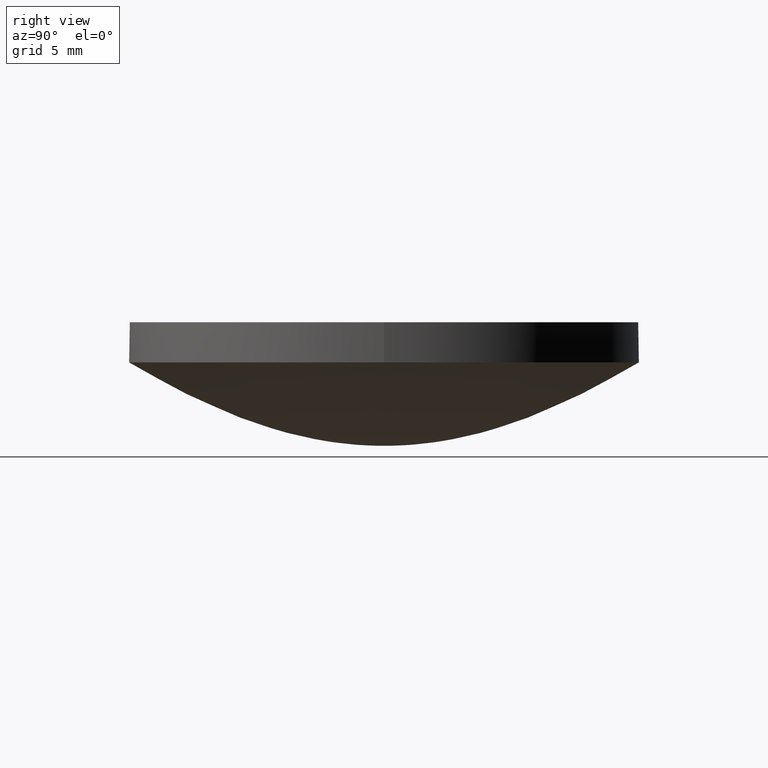
[diagram: clean part render]
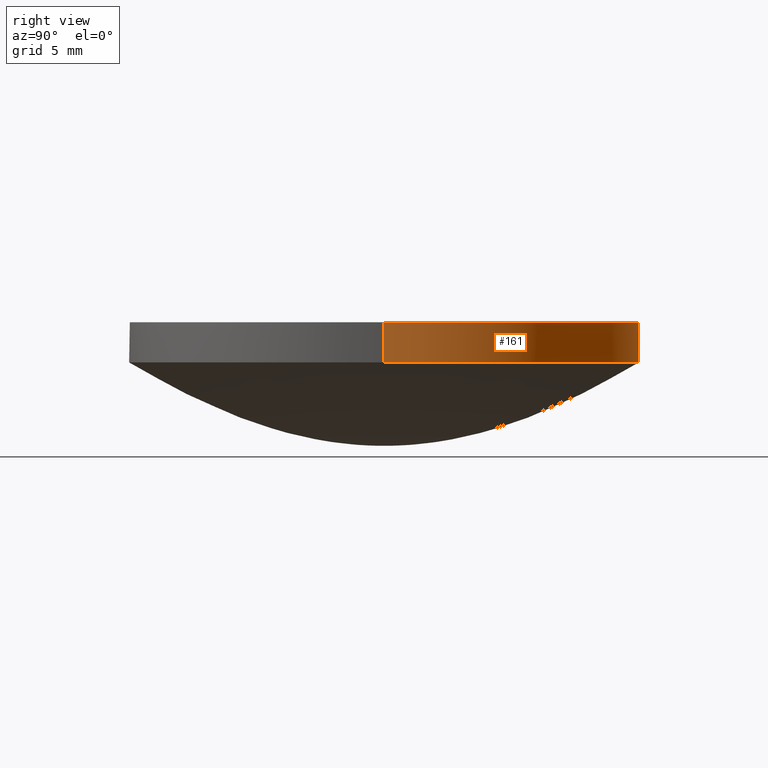
[diagram: same view with one face highlighted and labeled with its STEP entity id]
A machine part, right view. The second image highlights one B-rep face of the part: STEP entity #161.
In plain terms, the highlighted cylindrical surface (partial cylindrical patch) has radius 12.7 mm, axis along (0, 0, 1).
Its self-contained STEP definition (entity closure, byte-faithful):
#14 = LINE ( 'NONE', #56, #486 ) ;
#17 = AXIS2_PLACEMENT_3D ( 'NONE', #180, #139, #96 ) ;
#54 = CYLINDRICAL_SURFACE ( 'NONE', #186, 12.69999999999999929 ) ;
#56 = CARTESIAN_POINT ( 'NONE',  ( 12.70000000000000107, -8.881784197001250351E-16, 4.156662013466059236 ) ) ;
#59 = CARTESIAN_POINT ( 'NONE',  ( -3.851859888774471706E-31, 12.70000000000000284, 4.156662013466060124 ) ) ;
#70 = AXIS2_PLACEMENT_3D ( 'NONE', #498, #122, #215 ) ;
#83 = AXIS2_PLACEMENT_3D ( 'NONE', #515, #133, #409 ) ;
#85 = FACE_OUTER_BOUND ( 'NONE', #232, .T. ) ;
#93 = EDGE_CURVE ( 'NONE', #407, #189, #387, .T. ) ;
#96 = DIRECTION ( 'NONE',  ( 1.000000000000000000, 0.000000000000000000, -6.829619984160658046E-17 ) ) ;
#122 = DIRECTION ( 'NONE',  ( -0.000000000000000000, -0.000000000000000000, -1.000000000000000000 ) ) ;
#128 = EDGE_CURVE ( 'NONE', #495, #313, #511, .T. ) ;
#133 = DIRECTION ( 'NONE',  ( -0.000000000000000000, -0.000000000000000000, -1.000000000000000000 ) ) ;
#134 = CARTESIAN_POINT ( 'NONE',  ( 12.70000000000000107, -8.881784197001250351E-16, 6.159999999999998366 ) ) ;
#139 = DIRECTION ( 'NONE',  ( -6.993530863780509846E-17, -4.890947394265059749E-33, -1.000000000000000000 ) ) ;
#161 = ADVANCED_FACE ( 'NONE', ( #85 ), #54, .T. ) ;
#180 = CARTESIAN_POINT ( 'NONE',  ( 1.028282480094215200E-15, -8.881784197001250351E-16, 6.159999999999999254 ) ) ;
#186 = AXIS2_PLACEMENT_3D ( 'NONE', #219, #298, #204 ) ;
#189 = VERTEX_POINT ( 'NONE', #544 ) ;
#204 = DIRECTION ( 'NONE',  ( 1.000000000000000000, 0.000000000000000000, -6.829619984160658046E-17 ) ) ;
#215 = DIRECTION ( 'NONE',  ( -1.000000000000000000, 0.000000000000000000, 0.000000000000000000 ) ) ;
#217 = CIRCLE ( 'NONE', #83, 12.70000000000000284 ) ;
#219 = CARTESIAN_POINT ( 'NONE',  ( 8.881784197001250351E-16, -8.881784197001250351E-16, 4.156662013466060124 ) ) ;
#232 = EDGE_LOOP ( 'NONE', ( #326, #380, #241, #456, #534 ) ) ;
#241 = ORIENTED_EDGE ( 'NONE', *, *, #443, .T. ) ;
#256 = EDGE_CURVE ( 'NONE', #189, #452, #14, .T. ) ;
#266 = CARTESIAN_POINT ( 'NONE',  ( -12.69999999999999751, 6.671230152170134961E-16, 6.160000000000000142 ) ) ;
#290 = DIRECTION ( 'NONE',  ( 6.993530863780509846E-17, 4.890947394265059749E-33, 1.000000000000000000 ) ) ;
#293 = CARTESIAN_POINT ( 'NONE',  ( -12.69999999999999751, 6.671230152170134961E-16, 4.156662013466061012 ) ) ;
#298 = DIRECTION ( 'NONE',  ( 6.993530863780509846E-17, 4.890947394265059749E-33, 1.000000000000000000 ) ) ;
#313 = VERTEX_POINT ( 'NONE', #266 ) ;
#326 = ORIENTED_EDGE ( 'NONE', *, *, #391, .F. ) ;
#342 = DIRECTION ( 'NONE',  ( 6.993530863780509846E-17, 4.890947394265059749E-33, 1.000000000000000000 ) ) ;
#351 = VECTOR ( 'NONE', #290, 1000.000000000000000 ) ;
#380 = ORIENTED_EDGE ( 'NONE', *, *, #128, .T. ) ;
#387 = CIRCLE ( 'NONE', #70, 12.70000000000000284 ) ;
#391 = EDGE_CURVE ( 'NONE', #495, #407, #217, .T. ) ;
#407 = VERTEX_POINT ( 'NONE', #59 ) ;
#409 = DIRECTION ( 'NONE',  ( -1.000000000000000000, 0.000000000000000000, 0.000000000000000000 ) ) ;
#443 = EDGE_CURVE ( 'NONE', #313, #452, #532, .T. ) ;
#452 = VERTEX_POINT ( 'NONE', #134 ) ;
#456 = ORIENTED_EDGE ( 'NONE', *, *, #256, .F. ) ;
#486 = VECTOR ( 'NONE', #342, 1000.000000000000000 ) ;
#495 = VERTEX_POINT ( 'NONE', #518 ) ;
#498 = CARTESIAN_POINT ( 'NONE',  ( 1.734723475976807094E-15, -1.345898117247522881E-15, 4.156662013466060124 ) ) ;
#511 = LINE ( 'NONE', #293, #351 ) ;
#515 = CARTESIAN_POINT ( 'NONE',  ( 1.734723475976807094E-15, -1.345898117247522881E-15, 4.156662013466060124 ) ) ;
#518 = CARTESIAN_POINT ( 'NONE',  ( -12.70000000000000107, 6.671230152170136933E-16, 4.156662013466060124 ) ) ;
#532 = CIRCLE ( 'NONE', #17, 12.69999999999999929 ) ;
#534 = ORIENTED_EDGE ( 'NONE', *, *, #93, .F. ) ;
#544 = CARTESIAN_POINT ( 'NONE',  ( 12.70000000000000462, -8.881784197001248379E-16, 4.156662013466060124 ) ) ;